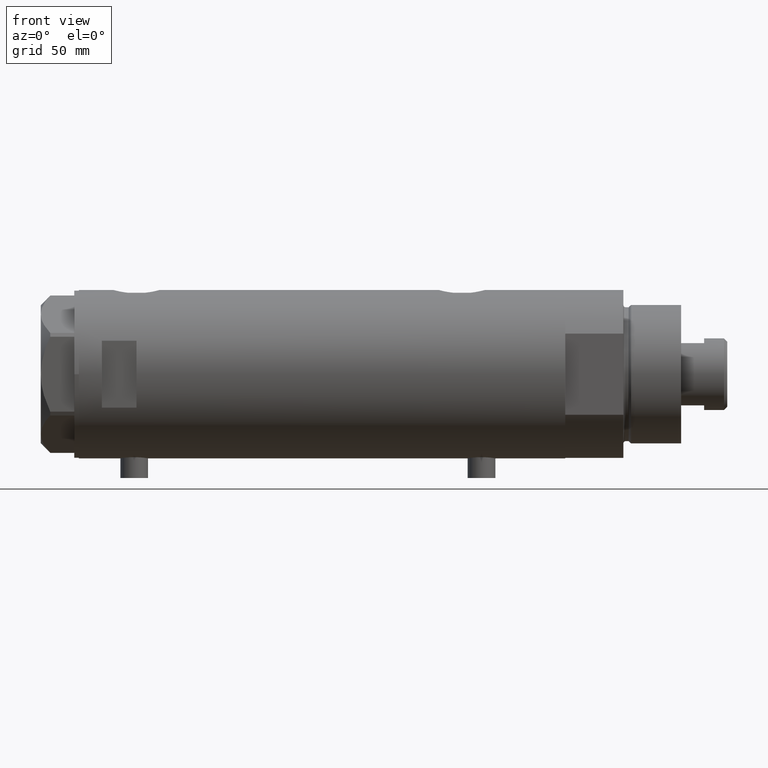
[diagram: clean part render]
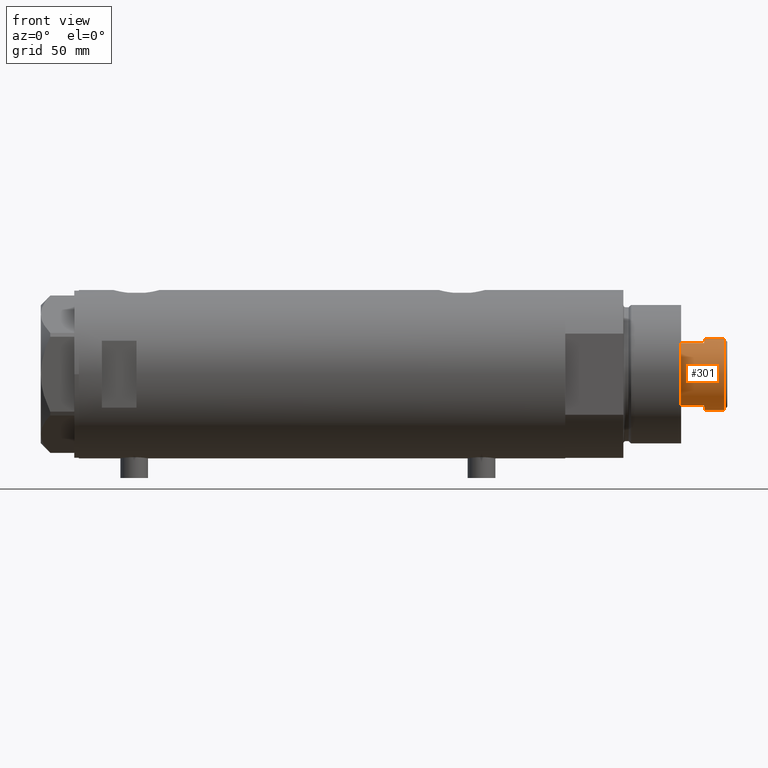
[diagram: same view with one face highlighted and labeled with its STEP entity id]
A machine part, front view. The second image highlights one B-rep face of the part: STEP entity #301.
In plain terms, the highlighted cylindrical surface (edge-blend (fillet) strip) has radius 15.5 mm, axis along (-1, -0, 0).
Its self-contained STEP definition (entity closure, byte-faithful):
#87 = VECTOR ( 'NONE', #455, 1000.000000000000000 ) ;
#197 = VERTEX_POINT ( 'NONE', #1924 ) ;
#259 = ORIENTED_EDGE ( 'NONE', *, *, #1058, .F. ) ;
#264 = VECTOR ( 'NONE', #609, 1000.000000000000000 ) ;
#272 = DIRECTION ( 'NONE',  ( -0.000000000000000000, -0.000000000000000000, -1.000000000000000000 ) ) ;
#281 = FACE_OUTER_BOUND ( 'NONE', #2020, .T. ) ;
#301 = ADVANCED_FACE ( 'NONE', ( #281 ), #1018, .T. ) ;
#455 = DIRECTION ( 'NONE',  ( -0.000000000000000000, -0.000000000000000000, -1.000000000000000000 ) ) ;
#477 = ORIENTED_EDGE ( 'NONE', *, *, #4085, .T. ) ;
#583 = CARTESIAN_POINT ( 'NONE',  ( 15.49999999999999822, 1.898202538678397163E-15, 245.0000000000000284 ) ) ;
#609 = DIRECTION ( 'NONE',  ( -0.000000000000000000, -0.000000000000000000, -1.000000000000000000 ) ) ;
#616 = LINE ( 'NONE', #2698, #1268 ) ;
#676 = EDGE_CURVE ( 'NONE', #1820, #1800, #3271, .T. ) ;
#695 = ORIENTED_EDGE ( 'NONE', *, *, #4319, .T. ) ;
#696 = DIRECTION ( 'NONE',  ( 0.000000000000000000, 0.000000000000000000, 1.000000000000000000 ) ) ;
#837 = DIRECTION ( 'NONE',  ( 0.000000000000000000, 0.000000000000000000, 1.000000000000000000 ) ) ;
#889 = DIRECTION ( 'NONE',  ( -1.000000000000000000, 0.000000000000000000, 0.000000000000000000 ) ) ;
#1018 = CYLINDRICAL_SURFACE ( 'NONE', #4447, 15.49999999999999822 ) ;
#1058 = EDGE_CURVE ( 'NONE', #3909, #4185, #2021, .T. ) ;
#1148 = LINE ( 'NONE', #2260, #87 ) ;
#1203 = CARTESIAN_POINT ( 'NONE',  ( -15.50000000000000178, 0.000000000000000000, 245.0000000000000284 ) ) ;
#1268 = VECTOR ( 'NONE', #3788, 1000.000000000000000 ) ;
#1303 = ORIENTED_EDGE ( 'NONE', *, *, #676, .F. ) ;
#1336 = CARTESIAN_POINT ( 'NONE',  ( 0.000000000000000000, 0.000000000000000000, 235.0000000000000284 ) ) ;
#1355 = CARTESIAN_POINT ( 'NONE',  ( 0.000000000000000000, 0.000000000000000000, 245.0000000000000284 ) ) ;
#1494 = EDGE_CURVE ( 'NONE', #197, #2326, #616, .T. ) ;
#1544 = CIRCLE ( 'NONE', #2410, 15.50000000000000000 ) ;
#1585 = ORIENTED_EDGE ( 'NONE', *, *, #2935, .T. ) ;
#1702 = DIRECTION ( 'NONE',  ( 1.000000000000000000, 0.000000000000000000, 0.000000000000000000 ) ) ;
#1800 = VERTEX_POINT ( 'NONE', #2181 ) ;
#1820 = VERTEX_POINT ( 'NONE', #3477 ) ;
#1924 = CARTESIAN_POINT ( 'NONE',  ( -15.49999999999999822, 0.000000000000000000, 253.5999999999999943 ) ) ;
#2020 = EDGE_LOOP ( 'NONE', ( #1303, #477, #3663, #695, #3262, #1585, #259, #2552 ) ) ;
#2021 = LINE ( 'NONE', #3758, #4019 ) ;
#2033 = CARTESIAN_POINT ( 'NONE',  ( 0.000000000000000000, 0.000000000000000000, 253.5999999999999943 ) ) ;
#2047 = VERTEX_POINT ( 'NONE', #4153 ) ;
#2048 = DIRECTION ( 'NONE',  ( 1.000000000000000000, 0.000000000000000000, 0.000000000000000000 ) ) ;
#2108 = AXIS2_PLACEMENT_3D ( 'NONE', #1336, #4481, #2384 ) ;
#2164 = CARTESIAN_POINT ( 'NONE',  ( 13.48630416385452691, -7.639999999999800728, 235.0000000000000284 ) ) ;
#2181 = CARTESIAN_POINT ( 'NONE',  ( 15.50000000000000178, 1.898202538678397557E-15, 245.0000000000000284 ) ) ;
#2260 = CARTESIAN_POINT ( 'NONE',  ( -13.48630416385452691, -7.640000000000001457, 245.0000000000000284 ) ) ;
#2326 = VERTEX_POINT ( 'NONE', #1203 ) ;
#2384 = DIRECTION ( 'NONE',  ( 1.000000000000000000, 0.000000000000000000, 0.000000000000000000 ) ) ;
#2410 = AXIS2_PLACEMENT_3D ( 'NONE', #3590, #837, #3920 ) ;
#2492 = EDGE_CURVE ( 'NONE', #3909, #1800, #1544, .T. ) ;
#2552 = ORIENTED_EDGE ( 'NONE', *, *, #2492, .T. ) ;
#2554 = CIRCLE ( 'NONE', #3430, 15.49999999999999822 ) ;
#2627 = VERTEX_POINT ( 'NONE', #3746 ) ;
#2632 = DIRECTION ( 'NONE',  ( 0.000000000000000000, 0.000000000000000000, -1.000000000000000000 ) ) ;
#2698 = CARTESIAN_POINT ( 'NONE',  ( -15.49999999999999822, 0.000000000000000000, 245.0000000000000284 ) ) ;
#2935 = EDGE_CURVE ( 'NONE', #2047, #4185, #3268, .T. ) ;
#3262 = ORIENTED_EDGE ( 'NONE', *, *, #3840, .T. ) ;
#3268 = CIRCLE ( 'NONE', #2108, 15.49999999999999822 ) ;
#3271 = LINE ( 'NONE', #583, #264 ) ;
#3408 = DIRECTION ( 'NONE',  ( -0.000000000000000000, -0.000000000000000000, -1.000000000000000000 ) ) ;
#3430 = AXIS2_PLACEMENT_3D ( 'NONE', #2033, #2632, #1702 ) ;
#3477 = CARTESIAN_POINT ( 'NONE',  ( 15.49999999999999822, 1.898202538678397163E-15, 253.5999999999999943 ) ) ;
#3590 = CARTESIAN_POINT ( 'NONE',  ( 0.000000000000000000, 0.000000000000000000, 245.0000000000000284 ) ) ;
#3663 = ORIENTED_EDGE ( 'NONE', *, *, #1494, .T. ) ;
#3746 = CARTESIAN_POINT ( 'NONE',  ( -13.48630416385452335, -7.640000000000004121, 245.0000000000000284 ) ) ;
#3758 = CARTESIAN_POINT ( 'NONE',  ( 13.48630416385453046, -7.639999999999995239, 245.0000000000000284 ) ) ;
#3788 = DIRECTION ( 'NONE',  ( -0.000000000000000000, -0.000000000000000000, -1.000000000000000000 ) ) ;
#3794 = AXIS2_PLACEMENT_3D ( 'NONE', #4164, #696, #2048 ) ;
#3840 = EDGE_CURVE ( 'NONE', #2627, #2047, #1148, .T. ) ;
#3909 = VERTEX_POINT ( 'NONE', #4287 ) ;
#3920 = DIRECTION ( 'NONE',  ( 1.000000000000000000, 0.000000000000000000, 0.000000000000000000 ) ) ;
#4019 = VECTOR ( 'NONE', #3408, 1000.000000000000000 ) ;
#4085 = EDGE_CURVE ( 'NONE', #1820, #197, #2554, .T. ) ;
#4153 = CARTESIAN_POINT ( 'NONE',  ( -13.48630416385452513, -7.639999999999807834, 235.0000000000000284 ) ) ;
#4164 = CARTESIAN_POINT ( 'NONE',  ( 0.000000000000000000, 0.000000000000000000, 245.0000000000000284 ) ) ;
#4185 = VERTEX_POINT ( 'NONE', #2164 ) ;
#4287 = CARTESIAN_POINT ( 'NONE',  ( 13.48630416385453046, -7.639999999999995239, 245.0000000000000284 ) ) ;
#4319 = EDGE_CURVE ( 'NONE', #2326, #2627, #4367, .T. ) ;
#4367 = CIRCLE ( 'NONE', #3794, 15.50000000000000000 ) ;
#4447 = AXIS2_PLACEMENT_3D ( 'NONE', #1355, #272, #889 ) ;
#4481 = DIRECTION ( 'NONE',  ( 0.000000000000000000, 0.000000000000000000, 1.000000000000000000 ) ) ;